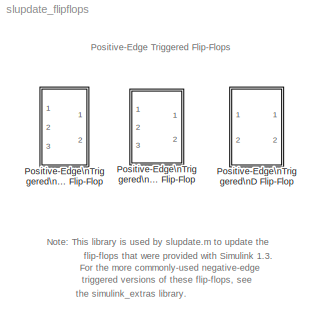
MODEL slupdate_flipflops
KIND library
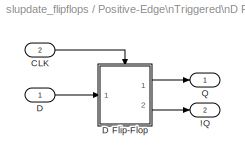
BLOCK [SubSystem] Positive-Edge\nTriggered\nD Flip-Flop
  MaskDescription = D Flip-Flop Block (Positive Edge Triggered)
  MaskEnableString = on
  MaskIconFrame = on
  MaskIconOpaque = on
  MaskIconRotate = none
  MaskIconUnits = autoscale
  MaskInitialization = if ~any(initial_condition == [0 1])\n  error('The initial condition has to be 0 or 1.');\nend
  MaskPromptString = Initial Condition
  MaskStyleString = edit
  MaskTunableValueString = on
  MaskType = PosEdgeDFlipFlop
  MaskValueString = 0
  MaskVariables = initial_condition=@1;
  MaskVisibilityString = on
  Ports = [2, 2, 0, 0, 0]
  ShowPortLabels = on
BLOCK [Outport] Positive-Edge\nTriggered\nD Flip-Flop/!Q
  InitialOutput = []
  OutputWhenDisabled = held
  Port = 2
BLOCK [Inport] Positive-Edge\nTriggered\nD Flip-Flop/CLK
  DataType = auto
  Interpolate = on
  Port = 2
  PortWidth = -1
  SampleTime = -1
  SignalType = auto
BLOCK [Inport] Positive-Edge\nTriggered\nD Flip-Flop/D
  DataType = auto
  Interpolate = on
  Port = 1
  PortWidth = -1
  SampleTime = -1
  SignalType = auto
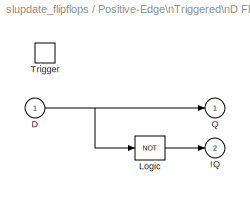
BLOCK [SubSystem] Positive-Edge\nTriggered\nD Flip-Flop/D Flip-Flop
  Ports = [1, 2, 0, 1, 0]
  ShowPortLabels = on
BLOCK [Outport] Positive-Edge\nTriggered\nD Flip-Flop/D Flip-Flop/!Q
  InitialOutput = ~initial_condition
  OutputWhenDisabled = held
  Port = 2
BLOCK [Inport] Positive-Edge\nTriggered\nD Flip-Flop/D Flip-Flop/D
  DataType = auto
  Interpolate = on
  Port = 1
  PortWidth = -1
  SampleTime = -1
  SignalType = auto
BLOCK [Logic] Positive-Edge\nTriggered\nD Flip-Flop/D Flip-Flop/Logic
  Inputs = 1
  Operator = NOT
  Ports = [1, 1, 0, 0, 0]
BLOCK [Outport] Positive-Edge\nTriggered\nD Flip-Flop/D Flip-Flop/Q
  InitialOutput = initial_condition
  OutputWhenDisabled = held
  Port = 1
BLOCK [TriggerPort] Positive-Edge\nTriggered\nD Flip-Flop/D Flip-Flop/Trigger
  OutputDataType = auto
  Ports = [0, 0, 0, 0, 0]
  ShowOutputPort = off
  TriggerType = rising
BLOCK [Outport] Positive-Edge\nTriggered\nD Flip-Flop/Q
  InitialOutput = []
  OutputWhenDisabled = held
  Port = 1
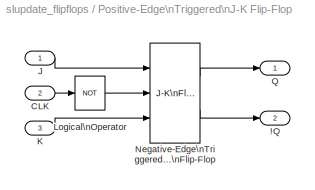
BLOCK [SubSystem] Positive-Edge\nTriggered\nJ-K Flip-Flop
  MaskDescription = J-K Flip Flop Block (Positive Edge Triggered)
  MaskEnableString = on
  MaskIconFrame = on
  MaskIconOpaque = on
  MaskIconRotate = none
  MaskIconUnits = autoscale
  MaskInitialization = if ~any(initial_condition == [0 1])\n  error('The initial condition has to be 0 or 1.');\nend
  MaskPromptString = Initial Condition:
  MaskStyleString = edit
  MaskTunableValueString = on
  MaskType = PosEdgeJKFlipFlop
  MaskValueString = 0
  MaskVariables = initial_condition=@1;
  MaskVisibilityString = on
  Ports = [3, 2, 0, 0, 0]
  ShowPortLabels = on
BLOCK [Outport] Positive-Edge\nTriggered\nJ-K Flip-Flop/!Q
  InitialOutput = []
  OutputWhenDisabled = held
  Port = 2
BLOCK [Inport] Positive-Edge\nTriggered\nJ-K Flip-Flop/CLK
  DataType = auto
  Interpolate = on
  Port = 2
  PortWidth = -1
  SampleTime = -1
  SignalType = auto
BLOCK [Inport] Positive-Edge\nTriggered\nJ-K Flip-Flop/J
  DataType = auto
  Interpolate = on
  Port = 1
  PortWidth = -1
  SampleTime = -1
  SignalType = auto
BLOCK [Inport] Positive-Edge\nTriggered\nJ-K Flip-Flop/K
  DataType = auto
  Interpolate = on
  Port = 3
  PortWidth = -1
  SampleTime = -1
  SignalType = auto
BLOCK [Logic] Positive-Edge\nTriggered\nJ-K Flip-Flop/Logical\nOperator
  Inputs = 2
  Operator = NOT
  Ports = [1, 1, 0, 0, 0]
BLOCK [Reference] Positive-Edge\nTriggered\nJ-K Flip-Flop/Negative-Edge\nTriggered\nJ-K\nFlip-Flop  REF=simulink_extras/Flip Flops/J-K\nFlip-Flop
  Ports = [3, 2, 0, 0, 0]
  SourceBlock = simulink_extras/Flip Flops/J-K\nFlip-Flop
  SourceType = JKFlipFlop
  initial_condition = initial_condition
BLOCK [Outport] Positive-Edge\nTriggered\nJ-K Flip-Flop/Q
  InitialOutput = []
  OutputWhenDisabled = held
  Port = 1
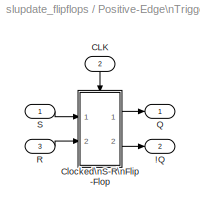
BLOCK [SubSystem] Positive-Edge\nTriggered\nS-R Flip-Flop
  MaskDescription = S-R Flip Flop Block (Positive Edge Triggered)
  MaskEnableString = on
  MaskIconFrame = on
  MaskIconOpaque = on
  MaskIconRotate = none
  MaskIconUnits = autoscale
  MaskInitialization = if ~any(initial_condition == [0 1])\n  error('The initial condition has to be 0 or 1.');\nend
  MaskPromptString = Initial condition:
  MaskStyleString = edit
  MaskTunableValueString = on
  MaskType = PosEdgeSRFlipFlop
  MaskValueString = 0
  MaskVariables = initial_condition=@1;
  MaskVisibilityString = on
  Ports = [3, 2, 0, 0, 0]
  ShowPortLabels = on
BLOCK [Outport] Positive-Edge\nTriggered\nS-R Flip-Flop/!Q
  InitialOutput = []
  OutputWhenDisabled = held
  Port = 2
BLOCK [Inport] Positive-Edge\nTriggered\nS-R Flip-Flop/CLK
  DataType = auto
  Interpolate = on
  Port = 2
  PortWidth = -1
  SampleTime = -1
  SignalType = auto
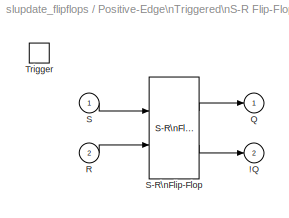
BLOCK [SubSystem] Positive-Edge\nTriggered\nS-R Flip-Flop/Clocked\nS-R\nFlip-Flop
  Ports = [2, 2, 0, 1, 0]
  ShowPortLabels = on
BLOCK [Outport] Positive-Edge\nTriggered\nS-R Flip-Flop/Clocked\nS-R\nFlip-Flop/!Q
  InitialOutput = ~initial_condition
  OutputWhenDisabled = held
  Port = 2
BLOCK [Outport] Positive-Edge\nTriggered\nS-R Flip-Flop/Clocked\nS-R\nFlip-Flop/Q
  InitialOutput = initial_condition
  OutputWhenDisabled = held
  Port = 1
BLOCK [Inport] Positive-Edge\nTriggered\nS-R Flip-Flop/Clocked\nS-R\nFlip-Flop/R
  DataType = auto
  Interpolate = on
  Port = 2
  PortWidth = -1
  SampleTime = -1
  SignalType = auto
BLOCK [Inport] Positive-Edge\nTriggered\nS-R Flip-Flop/Clocked\nS-R\nFlip-Flop/S
  DataType = auto
  Interpolate = on
  Port = 1
  PortWidth = -1
  SampleTime = -1
  SignalType = auto
BLOCK [Reference] Positive-Edge\nTriggered\nS-R Flip-Flop/Clocked\nS-R\nFlip-Flop/S-R\nFlip-Flop  REF=simulink_extras/Flip Flops/S-R\nFlip-Flop
  Ports = [2, 2, 0, 0, 0]
  SourceBlock = simulink_extras/Flip Flops/S-R\nFlip-Flop
  SourceType = SRFlipFlop
  initial_condition = initial_condition
BLOCK [TriggerPort] Positive-Edge\nTriggered\nS-R Flip-Flop/Clocked\nS-R\nFlip-Flop/Trigger
  OutputDataType = auto
  Ports = [0, 0, 0, 0, 0]
  ShowOutputPort = off
  TriggerType = rising
BLOCK [Outport] Positive-Edge\nTriggered\nS-R Flip-Flop/Q
  InitialOutput = []
  OutputWhenDisabled = held
  Port = 1
BLOCK [Inport] Positive-Edge\nTriggered\nS-R Flip-Flop/R
  DataType = auto
  Interpolate = on
  Port = 3
  PortWidth = -1
  SampleTime = -1
  SignalType = auto
BLOCK [Inport] Positive-Edge\nTriggered\nS-R Flip-Flop/S
  DataType = auto
  Interpolate = on
  Port = 1
  PortWidth = -1
  SampleTime = -1
  SignalType = auto
LINE Positive-Edge\nTriggered\nD Flip-Flop/CLK:1 -> Positive-Edge\nTriggered\nD Flip-Flop/D Flip-Flop:trigger
NET Positive-Edge\nTriggered\nD Flip-Flop/D Flip-Flop/D:1 -> Positive-Edge\nTriggered\nD Flip-Flop/D Flip-Flop/Logic:1, Positive-Edge\nTriggered\nD Flip-Flop/D Flip-Flop/Q:1
LINE Positive-Edge\nTriggered\nD Flip-Flop/D Flip-Flop/Logic:1 -> Positive-Edge\nTriggered\nD Flip-Flop/D Flip-Flop/!Q:1
LINE Positive-Edge\nTriggered\nD Flip-Flop/D Flip-Flop:1 -> Positive-Edge\nTriggered\nD Flip-Flop/Q:1
LINE Positive-Edge\nTriggered\nD Flip-Flop/D Flip-Flop:2 -> Positive-Edge\nTriggered\nD Flip-Flop/!Q:1
LINE Positive-Edge\nTriggered\nD Flip-Flop/D:1 -> Positive-Edge\nTriggered\nD Flip-Flop/D Flip-Flop:1
LINE Positive-Edge\nTriggered\nJ-K Flip-Flop/CLK:1 -> Positive-Edge\nTriggered\nJ-K Flip-Flop/Logical\nOperator:1
LINE Positive-Edge\nTriggered\nJ-K Flip-Flop/J:1 -> Positive-Edge\nTriggered\nJ-K Flip-Flop/Negative-Edge\nTriggered\nJ-K\nFlip-Flop:1
LINE Positive-Edge\nTriggered\nJ-K Flip-Flop/K:1 -> Positive-Edge\nTriggered\nJ-K Flip-Flop/Negative-Edge\nTriggered\nJ-K\nFlip-Flop:3
LINE Positive-Edge\nTriggered\nJ-K Flip-Flop/Logical\nOperator:1 -> Positive-Edge\nTriggered\nJ-K Flip-Flop/Negative-Edge\nTriggered\nJ-K\nFlip-Flop:2
LINE Positive-Edge\nTriggered\nJ-K Flip-Flop/Negative-Edge\nTriggered\nJ-K\nFlip-Flop:1 -> Positive-Edge\nTriggered\nJ-K Flip-Flop/Q:1
LINE Positive-Edge\nTriggered\nJ-K Flip-Flop/Negative-Edge\nTriggered\nJ-K\nFlip-Flop:2 -> Positive-Edge\nTriggered\nJ-K Flip-Flop/!Q:1
LINE Positive-Edge\nTriggered\nS-R Flip-Flop/CLK:1 -> Positive-Edge\nTriggered\nS-R Flip-Flop/Clocked\nS-R\nFlip-Flop:trigger
LINE Positive-Edge\nTriggered\nS-R Flip-Flop/Clocked\nS-R\nFlip-Flop/R:1 -> Positive-Edge\nTriggered\nS-R Flip-Flop/Clocked\nS-R\nFlip-Flop/S-R\nFlip-Flop:2
LINE Positive-Edge\nTriggered\nS-R Flip-Flop/Clocked\nS-R\nFlip-Flop/S-R\nFlip-Flop:1 -> Positive-Edge\nTriggered\nS-R Flip-Flop/Clocked\nS-R\nFlip-Flop/Q:1
LINE Positive-Edge\nTriggered\nS-R Flip-Flop/Clocked\nS-R\nFlip-Flop/S-R\nFlip-Flop:2 -> Positive-Edge\nTriggered\nS-R Flip-Flop/Clocked\nS-R\nFlip-Flop/!Q:1
LINE Positive-Edge\nTriggered\nS-R Flip-Flop/Clocked\nS-R\nFlip-Flop/S:1 -> Positive-Edge\nTriggered\nS-R Flip-Flop/Clocked\nS-R\nFlip-Flop/S-R\nFlip-Flop:1
LINE Positive-Edge\nTriggered\nS-R Flip-Flop/Clocked\nS-R\nFlip-Flop:1 -> Positive-Edge\nTriggered\nS-R Flip-Flop/Q:1
LINE Positive-Edge\nTriggered\nS-R Flip-Flop/Clocked\nS-R\nFlip-Flop:2 -> Positive-Edge\nTriggered\nS-R Flip-Flop/!Q:1
LINE Positive-Edge\nTriggered\nS-R Flip-Flop/R:1 -> Positive-Edge\nTriggered\nS-R Flip-Flop/Clocked\nS-R\nFlip-Flop:2
LINE Positive-Edge\nTriggered\nS-R Flip-Flop/S:1 -> Positive-Edge\nTriggered\nS-R Flip-Flop/Clocked\nS-R\nFlip-Flop:1
note: NET lines group one-source signal fan-out (src -> all destinations, sorted); 1:1 wires keep LINE
